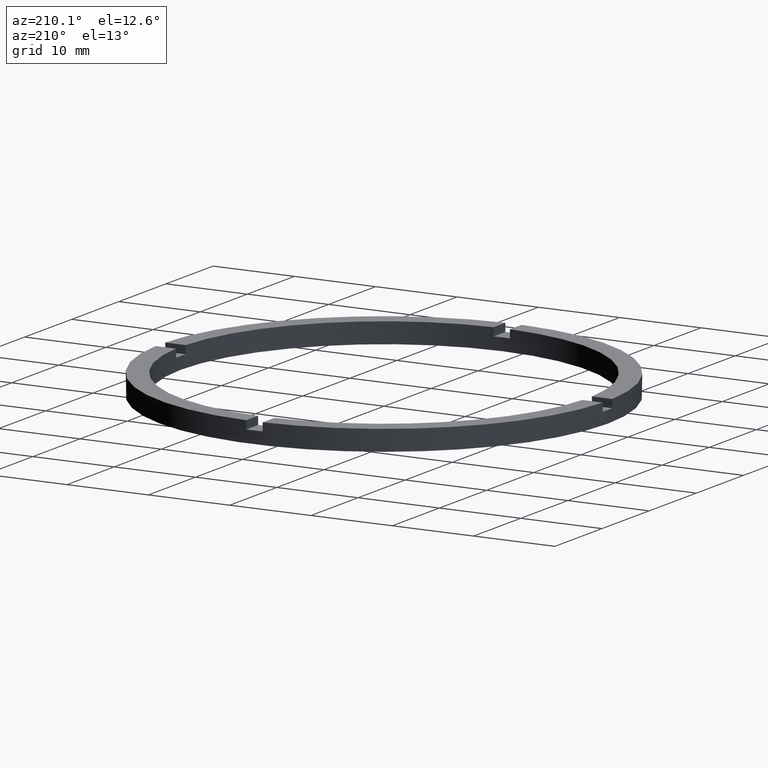
[diagram: clean part render]
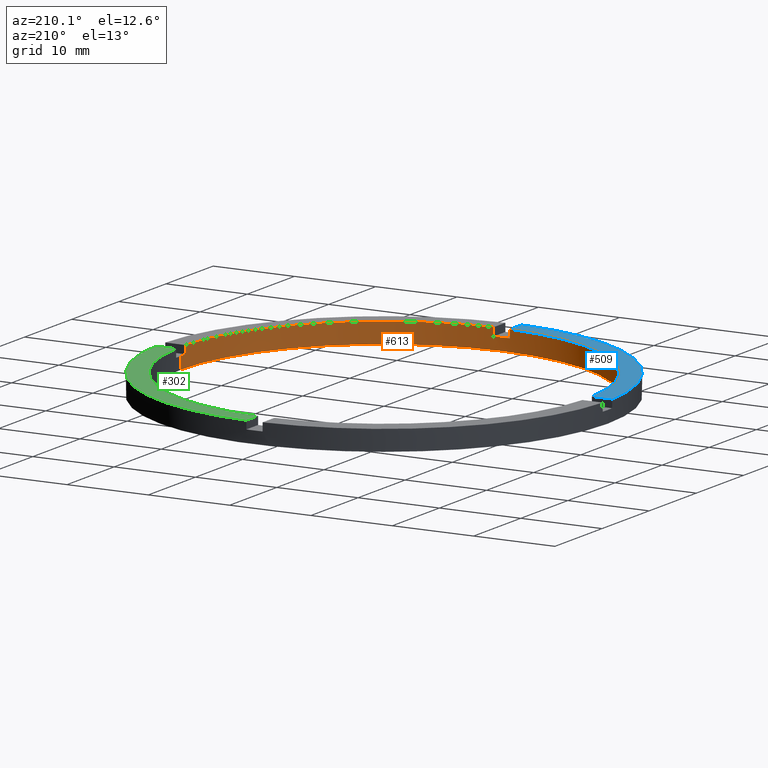
[diagram: same view with three faces highlighted in distinct colors, each labeled with its STEP entity id]
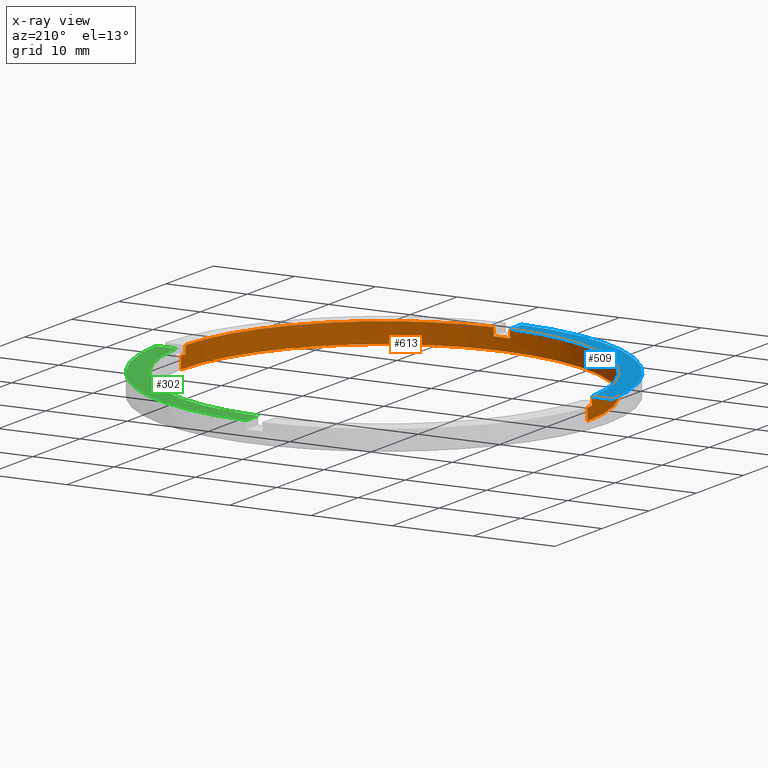
[diagram: x-ray of the same camera — body ghosted, the three highlighted faces saturated]
A machine part, auxiliary view with three faces highlighted in distinct colors.
The next image is the same camera in x-ray (body ghosted, the three faces saturated) — at least one of them is partly hidden behind the body in this view.
Their STEP definitions:

[orange] entity #613 — the highlighted cylindrical surface (partial cylindrical patch) has radius 25 mm, axis along (-0, -0, -1).
#3 = DIRECTION ( 'NONE',  ( 1.000000000000000000, 0.000000000000000000, 0.000000000000000000 ) ) ;
#37 = DIRECTION ( 'NONE',  ( -0.000000000000000000, -0.000000000000000000, -1.000000000000000000 ) ) ;
#38 = AXIS2_PLACEMENT_3D ( 'NONE', #448, #484, #585 ) ;
#44 = CARTESIAN_POINT ( 'NONE',  ( 0.000000000000000000, 0.000000000000000000, 1.500000000000000000 ) ) ;
#55 = CIRCLE ( 'NONE', #110, 25.00000000000000000 ) ;
#64 = CARTESIAN_POINT ( 'NONE',  ( -1.000000000000160316, -24.97999199359358968, 1.500000000000000000 ) ) ;
#88 = CARTESIAN_POINT ( 'NONE',  ( 0.9999999999998397948, -24.97999199359360034, 2.500000000000000000 ) ) ;
#103 = DIRECTION ( 'NONE',  ( -1.000000000000000000, 0.000000000000000000, 0.000000000000000000 ) ) ;
#107 = VERTEX_POINT ( 'NONE', #158 ) ;
#110 = AXIS2_PLACEMENT_3D ( 'NONE', #502, #118, #123 ) ;
#117 = ORIENTED_EDGE ( 'NONE', *, *, #304, .T. ) ;
#118 = DIRECTION ( 'NONE',  ( 0.000000000000000000, 0.000000000000000000, 1.000000000000000000 ) ) ;
#123 = DIRECTION ( 'NONE',  ( 1.000000000000000000, 0.000000000000000000, 0.000000000000000000 ) ) ;
#137 = ORIENTED_EDGE ( 'NONE', *, *, #616, .T. ) ;
#138 = DIRECTION ( 'NONE',  ( -0.000000000000000000, -0.000000000000000000, -1.000000000000000000 ) ) ;
#141 = DIRECTION ( 'NONE',  ( -0.000000000000000000, 0.000000000000000000, 1.000000000000000000 ) ) ;
#157 = CARTESIAN_POINT ( 'NONE',  ( 0.000000000000000000, 0.000000000000000000, 0.000000000000000000 ) ) ;
#158 = CARTESIAN_POINT ( 'NONE',  ( 24.97999199359358968, -1.000000000000157208, 1.500000000000000000 ) ) ;
#164 = CARTESIAN_POINT ( 'NONE',  ( 25.00000000000000000, 3.061616997868383043E-15, 0.000000000000000000 ) ) ;
#165 = VERTEX_POINT ( 'NONE', #303 ) ;
#175 = EDGE_CURVE ( 'NONE', #463, #644, #347, .T. ) ;
#179 = CARTESIAN_POINT ( 'NONE',  ( -1.000000000000160316, -24.97999199359358968, 2.500000000000000000 ) ) ;
#182 = VERTEX_POINT ( 'NONE', #609 ) ;
#184 = VERTEX_POINT ( 'NONE', #362 ) ;
#185 = CARTESIAN_POINT ( 'NONE',  ( 24.97999199359358968, -1.000000000000157208, 2.500000000000000000 ) ) ;
#186 = ORIENTED_EDGE ( 'NONE', *, *, #308, .F. ) ;
#187 = ORIENTED_EDGE ( 'NONE', *, *, #781, .F. ) ;
#197 = EDGE_CURVE ( 'NONE', #458, #184, #55, .T. ) ;
#205 = VERTEX_POINT ( 'NONE', #64 ) ;
#207 = EDGE_CURVE ( 'NONE', #107, #165, #312, .T. ) ;
#214 = CIRCLE ( 'NONE', #504, 25.00000000000000000 ) ;
#215 = ORIENTED_EDGE ( 'NONE', *, *, #175, .T. ) ;
#216 = LINE ( 'NONE', #287, #252 ) ;
#233 = EDGE_CURVE ( 'NONE', #438, #182, #333, .T. ) ;
#237 = CIRCLE ( 'NONE', #268, 25.00000000000000000 ) ;
#245 = CIRCLE ( 'NONE', #537, 25.00000000000000000 ) ;
#252 = VECTOR ( 'NONE', #37, 1000.000000000000000 ) ;
#259 = DIRECTION ( 'NONE',  ( 0.000000000000000000, 0.000000000000000000, 1.000000000000000000 ) ) ;
#268 = AXIS2_PLACEMENT_3D ( 'NONE', #517, #141, #552 ) ;
#271 = CARTESIAN_POINT ( 'NONE',  ( -24.97999199359359679, -1.000000000000026423, 1.500000000000000000 ) ) ;
#286 = AXIS2_PLACEMENT_3D ( 'NONE', #462, #691, #103 ) ;
#287 = CARTESIAN_POINT ( 'NONE',  ( -24.97999199359359679, -1.000000000000026423, 2.500000000000000000 ) ) ;
#290 = CARTESIAN_POINT ( 'NONE',  ( 0.000000000000000000, 0.000000000000000000, 1.500000000000000000 ) ) ;
#303 = CARTESIAN_POINT ( 'NONE',  ( 24.97999199359358968, -1.000000000000157208, 2.500000000000000000 ) ) ;
#304 = EDGE_CURVE ( 'NONE', #727, #165, #578, .T. ) ;
#308 = EDGE_CURVE ( 'NONE', #182, #644, #335, .T. ) ;
#312 = LINE ( 'NONE', #185, #570 ) ;
#315 = AXIS2_PLACEMENT_3D ( 'NONE', #157, #540, #645 ) ;
#333 = LINE ( 'NONE', #620, #583 ) ;
#335 = CIRCLE ( 'NONE', #315, 25.00000000000000000 ) ;
#346 = EDGE_CURVE ( 'NONE', #205, #184, #595, .T. ) ;
#347 = LINE ( 'NONE', #542, #568 ) ;
#362 = CARTESIAN_POINT ( 'NONE',  ( -1.000000000000160316, -24.97999199359358968, 2.500000000000000000 ) ) ;
#398 = VERTEX_POINT ( 'NONE', #271 ) ;
#438 = VERTEX_POINT ( 'NONE', #757 ) ;
#448 = CARTESIAN_POINT ( 'NONE',  ( 0.000000000000000000, 0.000000000000000000, 2.500000000000000000 ) ) ;
#449 = ORIENTED_EDGE ( 'NONE', *, *, #207, .F. ) ;
#452 = CARTESIAN_POINT ( 'NONE',  ( 25.00000000000000000, 3.061616997868383043E-15, 1.500000000000000000 ) ) ;
#453 = ORIENTED_EDGE ( 'NONE', *, *, #233, .F. ) ;
#458 = VERTEX_POINT ( 'NONE', #622 ) ;
#462 = CARTESIAN_POINT ( 'NONE',  ( 0.000000000000000000, 0.000000000000000000, 2.500000000000000000 ) ) ;
#463 = VERTEX_POINT ( 'NONE', #452 ) ;
#464 = DIRECTION ( 'NONE',  ( 0.000000000000000000, 0.000000000000000000, 1.000000000000000000 ) ) ;
#472 = DIRECTION ( 'NONE',  ( -0.000000000000000000, -0.000000000000000000, -1.000000000000000000 ) ) ;
#484 = DIRECTION ( 'NONE',  ( 0.000000000000000000, 0.000000000000000000, 1.000000000000000000 ) ) ;
#492 = VECTOR ( 'NONE', #138, 1000.000000000000000 ) ;
#494 = FACE_OUTER_BOUND ( 'NONE', #720, .T. ) ;
#502 = CARTESIAN_POINT ( 'NONE',  ( 0.000000000000000000, 0.000000000000000000, 2.500000000000000000 ) ) ;
#504 = AXIS2_PLACEMENT_3D ( 'NONE', #44, #777, #569 ) ;
#515 = EDGE_CURVE ( 'NONE', #205, #647, #237, .T. ) ;
#517 = CARTESIAN_POINT ( 'NONE',  ( 0.000000000000000000, 0.000000000000000000, 1.500000000000000000 ) ) ;
#537 = AXIS2_PLACEMENT_3D ( 'NONE', #290, #464, #3 ) ;
#540 = DIRECTION ( 'NONE',  ( 0.000000000000000000, 0.000000000000000000, 1.000000000000000000 ) ) ;
#542 = CARTESIAN_POINT ( 'NONE',  ( 25.00000000000000000, 3.061616997868383043E-15, 2.500000000000000000 ) ) ;
#548 = CARTESIAN_POINT ( 'NONE',  ( 0.9999999999998397948, -24.97999199359360034, 1.500000000000000000 ) ) ;
#551 = DIRECTION ( 'NONE',  ( 0.000000000000000000, 0.000000000000000000, 1.000000000000000000 ) ) ;
#552 = DIRECTION ( 'NONE',  ( 1.000000000000000000, 0.000000000000000000, 0.000000000000000000 ) ) ;
#568 = VECTOR ( 'NONE', #601, 1000.000000000000000 ) ;
#569 = DIRECTION ( 'NONE',  ( 1.000000000000000000, 0.000000000000000000, 0.000000000000000000 ) ) ;
#570 = VECTOR ( 'NONE', #259, 1000.000000000000000 ) ;
#578 = CIRCLE ( 'NONE', #38, 25.00000000000000000 ) ;
#580 = CARTESIAN_POINT ( 'NONE',  ( 0.9999999999998397948, -24.97999199359360034, 2.500000000000000000 ) ) ;
#582 = EDGE_CURVE ( 'NONE', #727, #647, #723, .T. ) ;
#583 = VECTOR ( 'NONE', #472, 1000.000000000000000 ) ;
#585 = DIRECTION ( 'NONE',  ( 1.000000000000000000, 0.000000000000000000, 0.000000000000000000 ) ) ;
#595 = LINE ( 'NONE', #179, #598 ) ;
#598 = VECTOR ( 'NONE', #551, 1000.000000000000000 ) ;
#601 = DIRECTION ( 'NONE',  ( -0.000000000000000000, -0.000000000000000000, -1.000000000000000000 ) ) ;
#609 = CARTESIAN_POINT ( 'NONE',  ( -25.00000000000000000, 0.000000000000000000, 0.000000000000000000 ) ) ;
#613 = ADVANCED_FACE ( 'NONE', ( #494 ), #772, .F. ) ;
#616 = EDGE_CURVE ( 'NONE', #107, #463, #214, .T. ) ;
#620 = CARTESIAN_POINT ( 'NONE',  ( -25.00000000000000000, 0.000000000000000000, 2.500000000000000000 ) ) ;
#622 = CARTESIAN_POINT ( 'NONE',  ( -24.97999199359359679, -1.000000000000026423, 2.500000000000000000 ) ) ;
#633 = ORIENTED_EDGE ( 'NONE', *, *, #346, .F. ) ;
#644 = VERTEX_POINT ( 'NONE', #164 ) ;
#645 = DIRECTION ( 'NONE',  ( 1.000000000000000000, 0.000000000000000000, 0.000000000000000000 ) ) ;
#647 = VERTEX_POINT ( 'NONE', #548 ) ;
#659 = ORIENTED_EDGE ( 'NONE', *, *, #688, .T. ) ;
#681 = ORIENTED_EDGE ( 'NONE', *, *, #197, .T. ) ;
#688 = EDGE_CURVE ( 'NONE', #438, #398, #245, .T. ) ;
#691 = DIRECTION ( 'NONE',  ( -0.000000000000000000, -0.000000000000000000, -1.000000000000000000 ) ) ;
#720 = EDGE_LOOP ( 'NONE', ( #137, #215, #186, #453, #659, #187, #681, #633, #742, #751, #117, #449 ) ) ;
#723 = LINE ( 'NONE', #88, #492 ) ;
#727 = VERTEX_POINT ( 'NONE', #580 ) ;
#742 = ORIENTED_EDGE ( 'NONE', *, *, #515, .T. ) ;
#751 = ORIENTED_EDGE ( 'NONE', *, *, #582, .F. ) ;
#757 = CARTESIAN_POINT ( 'NONE',  ( -25.00000000000000000, 0.000000000000000000, 1.500000000000000000 ) ) ;
#772 = CYLINDRICAL_SURFACE ( 'NONE', #286, 25.00000000000000000 ) ;
#777 = DIRECTION ( 'NONE',  ( 0.000000000000000000, 0.000000000000000000, 1.000000000000000000 ) ) ;
#781 = EDGE_CURVE ( 'NONE', #458, #398, #216, .T. ) ;

[blue] entity #509 — the highlighted planar face has unit normal (0, 0, 1).
#28 = DIRECTION ( 'NONE',  ( 0.000000000000000000, 0.000000000000000000, 1.000000000000000000 ) ) ;
#55 = CIRCLE ( 'NONE', #110, 25.00000000000000000 ) ;
#70 = VECTOR ( 'NONE', #105, 1000.000000000000000 ) ;
#96 = DIRECTION ( 'NONE',  ( 1.000000000000000000, 0.000000000000000000, 0.000000000000000000 ) ) ;
#97 = DIRECTION ( 'NONE',  ( 1.301042606982605567E-16, -1.000000000000000000, 0.000000000000000000 ) ) ;
#104 = ORIENTED_EDGE ( 'NONE', *, *, #592, .F. ) ;
#105 = DIRECTION ( 'NONE',  ( 1.000000000000000000, 1.734723475976807341E-16, -0.000000000000000000 ) ) ;
#110 = AXIS2_PLACEMENT_3D ( 'NONE', #502, #118, #123 ) ;
#118 = DIRECTION ( 'NONE',  ( 0.000000000000000000, 0.000000000000000000, 1.000000000000000000 ) ) ;
#123 = DIRECTION ( 'NONE',  ( 1.000000000000000000, 0.000000000000000000, 0.000000000000000000 ) ) ;
#139 = AXIS2_PLACEMENT_3D ( 'NONE', #159, #538, #96 ) ;
#159 = CARTESIAN_POINT ( 'NONE',  ( 0.000000000000000000, 0.000000000000000000, 2.500000000000000000 ) ) ;
#163 = CIRCLE ( 'NONE', #139, 27.50000000000000000 ) ;
#177 = VERTEX_POINT ( 'NONE', #646 ) ;
#180 = EDGE_LOOP ( 'NONE', ( #104, #201, #350, #696 ) ) ;
#184 = VERTEX_POINT ( 'NONE', #362 ) ;
#197 = EDGE_CURVE ( 'NONE', #458, #184, #55, .T. ) ;
#201 = ORIENTED_EDGE ( 'NONE', *, *, #197, .F. ) ;
#277 = CARTESIAN_POINT ( 'NONE',  ( -1.000000000000160094, -27.48181216732258392, 2.500000000000000000 ) ) ;
#307 = EDGE_CURVE ( 'NONE', #177, #458, #337, .T. ) ;
#337 = LINE ( 'NONE', #575, #70 ) ;
#350 = ORIENTED_EDGE ( 'NONE', *, *, #307, .F. ) ;
#362 = CARTESIAN_POINT ( 'NONE',  ( -1.000000000000160316, -24.97999199359358968, 2.500000000000000000 ) ) ;
#378 = EDGE_CURVE ( 'NONE', #177, #465, #163, .T. ) ;
#458 = VERTEX_POINT ( 'NONE', #622 ) ;
#465 = VERTEX_POINT ( 'NONE', #277 ) ;
#502 = CARTESIAN_POINT ( 'NONE',  ( 0.000000000000000000, 0.000000000000000000, 2.500000000000000000 ) ) ;
#508 = FACE_OUTER_BOUND ( 'NONE', #180, .T. ) ;
#509 = ADVANCED_FACE ( 'NONE', ( #508 ), #519, .T. ) ;
#519 = PLANE ( 'NONE',  #703 ) ;
#538 = DIRECTION ( 'NONE',  ( 0.000000000000000000, 0.000000000000000000, 1.000000000000000000 ) ) ;
#575 = CARTESIAN_POINT ( 'NONE',  ( -17.50000000000018474, -1.000000000000025091, 2.500000000000000000 ) ) ;
#592 = EDGE_CURVE ( 'NONE', #184, #465, #773, .T. ) ;
#614 = CARTESIAN_POINT ( 'NONE',  ( 0.000000000000000000, 0.000000000000000000, 2.500000000000000000 ) ) ;
#622 = CARTESIAN_POINT ( 'NONE',  ( -24.97999199359359679, -1.000000000000026423, 2.500000000000000000 ) ) ;
#646 = CARTESIAN_POINT ( 'NONE',  ( -27.48181216732259102, -1.000000000000026867, 2.500000000000000000 ) ) ;
#664 = DIRECTION ( 'NONE',  ( 1.000000000000000000, 0.000000000000000000, -0.000000000000000000 ) ) ;
#696 = ORIENTED_EDGE ( 'NONE', *, *, #378, .T. ) ;
#703 = AXIS2_PLACEMENT_3D ( 'NONE', #614, #28, #664 ) ;
#766 = VECTOR ( 'NONE', #97, 1000.000000000000000 ) ;
#773 = LINE ( 'NONE', #783, #766 ) ;
#783 = CARTESIAN_POINT ( 'NONE',  ( -1.000000000000161204, -17.50000000000018119, 2.500000000000000000 ) ) ;

[green] entity #302 — the highlighted planar face has unit normal (0, 0, 1).
#49 = DIRECTION ( 'NONE',  ( 0.000000000000000000, 0.000000000000000000, 1.000000000000000000 ) ) ;
#50 = CARTESIAN_POINT ( 'NONE',  ( 0.9999999999999735767, 27.48181216732259102, 2.500000000000000000 ) ) ;
#68 = CIRCLE ( 'NONE', #566, 25.00000000000000000 ) ;
#77 = LINE ( 'NONE', #712, #343 ) ;
#115 = DIRECTION ( 'NONE',  ( 0.000000000000000000, 0.000000000000000000, 1.000000000000000000 ) ) ;
#162 = EDGE_CURVE ( 'NONE', #219, #388, #77, .T. ) ;
#169 = CARTESIAN_POINT ( 'NONE',  ( 27.48181216732259458, 0.9999999999998430145, 2.500000000000000000 ) ) ;
#211 = DIRECTION ( 'NONE',  ( -1.000000000000000000, -4.336808689942017120E-17, -0.000000000000000000 ) ) ;
#213 = EDGE_CURVE ( 'NONE', #694, #219, #68, .T. ) ;
#219 = VERTEX_POINT ( 'NONE', #391 ) ;
#224 = CIRCLE ( 'NONE', #418, 27.50000000000000000 ) ;
#249 = LINE ( 'NONE', #769, #470 ) ;
#266 = DIRECTION ( 'NONE',  ( 0.000000000000000000, 1.000000000000000000, 0.000000000000000000 ) ) ;
#302 = ADVANCED_FACE ( 'NONE', ( #325 ), #355, .T. ) ;
#325 = FACE_OUTER_BOUND ( 'NONE', #706, .T. ) ;
#327 = DIRECTION ( 'NONE',  ( 1.000000000000000000, 0.000000000000000000, -0.000000000000000000 ) ) ;
#343 = VECTOR ( 'NONE', #266, 1000.000000000000000 ) ;
#355 = PLANE ( 'NONE',  #364 ) ;
#358 = DIRECTION ( 'NONE',  ( 1.000000000000000000, 0.000000000000000000, 0.000000000000000000 ) ) ;
#364 = AXIS2_PLACEMENT_3D ( 'NONE', #545, #49, #327 ) ;
#369 = CARTESIAN_POINT ( 'NONE',  ( 0.000000000000000000, 0.000000000000000000, 2.500000000000000000 ) ) ;
#382 = ORIENTED_EDGE ( 'NONE', *, *, #701, .F. ) ;
#384 = ORIENTED_EDGE ( 'NONE', *, *, #162, .F. ) ;
#388 = VERTEX_POINT ( 'NONE', #50 ) ;
#391 = CARTESIAN_POINT ( 'NONE',  ( 0.9999999999999735767, 24.97999199359359679, 2.500000000000000000 ) ) ;
#396 = CARTESIAN_POINT ( 'NONE',  ( 24.97999199359360034, 0.9999999999998430145, 2.500000000000000000 ) ) ;
#414 = DIRECTION ( 'NONE',  ( 0.000000000000000000, 0.000000000000000000, 1.000000000000000000 ) ) ;
#418 = AXIS2_PLACEMENT_3D ( 'NONE', #482, #115, #358 ) ;
#470 = VECTOR ( 'NONE', #211, 1000.000000000000000 ) ;
#482 = CARTESIAN_POINT ( 'NONE',  ( 0.000000000000000000, 0.000000000000000000, 2.500000000000000000 ) ) ;
#545 = CARTESIAN_POINT ( 'NONE',  ( 0.000000000000000000, 0.000000000000000000, 2.500000000000000000 ) ) ;
#562 = DIRECTION ( 'NONE',  ( 1.000000000000000000, 0.000000000000000000, 0.000000000000000000 ) ) ;
#566 = AXIS2_PLACEMENT_3D ( 'NONE', #369, #414, #562 ) ;
#656 = EDGE_CURVE ( 'NONE', #678, #388, #224, .T. ) ;
#678 = VERTEX_POINT ( 'NONE', #169 ) ;
#694 = VERTEX_POINT ( 'NONE', #396 ) ;
#701 = EDGE_CURVE ( 'NONE', #678, #694, #249, .T. ) ;
#706 = EDGE_LOOP ( 'NONE', ( #384, #725, #382, #716 ) ) ;
#712 = CARTESIAN_POINT ( 'NONE',  ( 0.9999999999999735767, 17.50000000000000000, 2.500000000000000000 ) ) ;
#716 = ORIENTED_EDGE ( 'NONE', *, *, #656, .T. ) ;
#725 = ORIENTED_EDGE ( 'NONE', *, *, #213, .F. ) ;
#769 = CARTESIAN_POINT ( 'NONE',  ( 17.49999999999999645, 0.9999999999998425704, 2.500000000000000000 ) ) ;